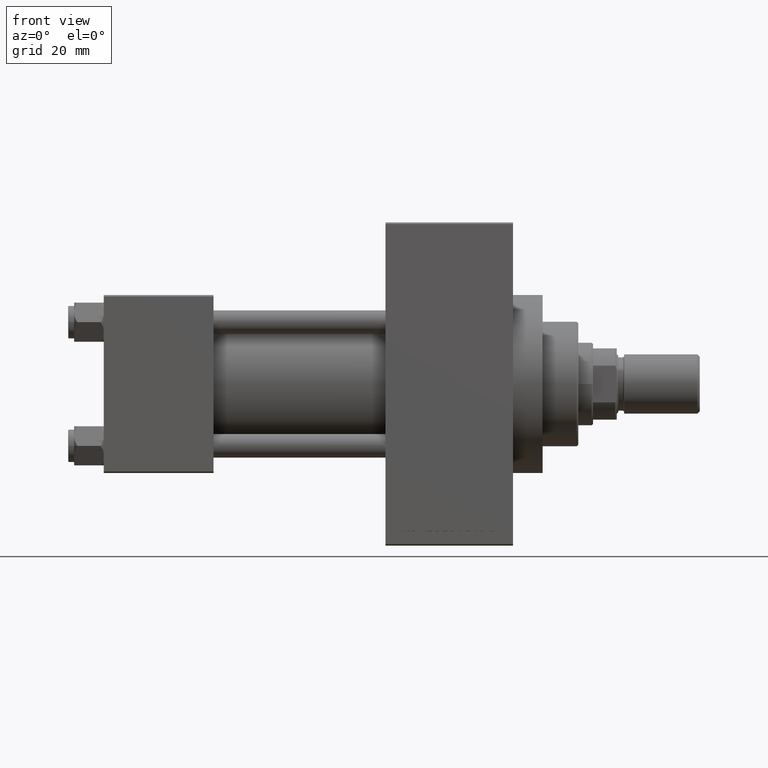
[diagram: clean part render]
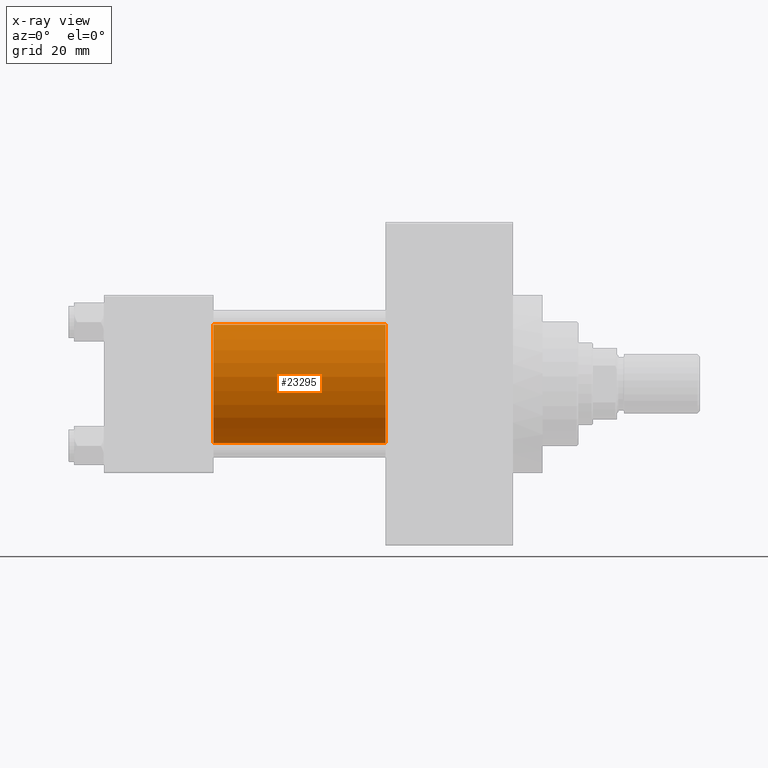
[diagram: x-ray — body ghosted, one internal face saturated and labeled with its STEP entity id]
A machine part, front view, then the same camera in x-ray: the body is ghosted and one INTERNAL B-rep face — a face not visible from any outside direction — is saturated and labeled: STEP entity #23295.
In plain terms, the highlighted cylindrical surface (partial cylindrical patch) has radius 20 mm, axis along (-1, -0, -0).
Its self-contained STEP definition (entity closure, byte-faithful):
#78 = CARTESIAN_POINT ( 'NONE',  ( 95.00000000000000000, -2.602085213965210642E-15, 20.00000000000000000 ) ) ;
#2250 = LINE ( 'NONE', #5635, #12623 ) ;
#4244 = DIRECTION ( 'NONE',  ( 0.000000000000000000, 0.000000000000000000, -1.000000000000000000 ) ) ;
#5635 = CARTESIAN_POINT ( 'NONE',  ( 95.00000000000000000, -2.602085213965210642E-15, 20.00000000000000000 ) ) ;
#5694 = CARTESIAN_POINT ( 'NONE',  ( 37.00000000000000000, -2.602085213965210642E-15, 0.000000000000000000 ) ) ;
#7670 = ORIENTED_EDGE ( 'NONE', *, *, #17420, .F. ) ;
#8691 = DIRECTION ( 'NONE',  ( -1.000000000000000000, -0.000000000000000000, -0.000000000000000000 ) ) ;
#8924 = ORIENTED_EDGE ( 'NONE', *, *, #34322, .T. ) ;
#11119 = DIRECTION ( 'NONE',  ( 0.000000000000000000, 0.000000000000000000, 1.000000000000000000 ) ) ;
#12623 = VECTOR ( 'NONE', #46650, 1000.000000000000000 ) ;
#12898 = CIRCLE ( 'NONE', #36810, 20.00000000000000000 ) ;
#13136 = ORIENTED_EDGE ( 'NONE', *, *, #22215, .F. ) ;
#15924 = VECTOR ( 'NONE', #8691, 1000.000000000000000 ) ;
#17420 = EDGE_CURVE ( 'NONE', #44711, #37010, #18662, .T. ) ;
#18662 = CIRCLE ( 'NONE', #34093, 20.00000000000000000 ) ;
#22215 = EDGE_CURVE ( 'NONE', #40984, #44711, #2250, .T. ) ;
#23295 = ADVANCED_FACE ( 'NONE', ( #29459 ), #36692, .F. ) ;
#23552 = VERTEX_POINT ( 'NONE', #28434 ) ;
#26957 = ORIENTED_EDGE ( 'NONE', *, *, #28723, .T. ) ;
#27265 = CARTESIAN_POINT ( 'NONE',  ( 95.00000000000000000, -1.527916156705046464E-16, -20.00000000000000000 ) ) ;
#28434 = CARTESIAN_POINT ( 'NONE',  ( 95.00000000000000000, -1.527916156705046464E-16, -20.00000000000000000 ) ) ;
#28723 = EDGE_CURVE ( 'NONE', #23552, #37010, #30878, .T. ) ;
#28745 = DIRECTION ( 'NONE',  ( -1.000000000000000000, -0.000000000000000000, -0.000000000000000000 ) ) ;
#29459 = FACE_OUTER_BOUND ( 'NONE', #36566, .T. ) ;
#30334 = DIRECTION ( 'NONE',  ( 0.000000000000000000, 0.000000000000000000, -1.000000000000000000 ) ) ;
#30560 = DIRECTION ( 'NONE',  ( 1.000000000000000000, 0.000000000000000000, 0.000000000000000000 ) ) ;
#30878 = LINE ( 'NONE', #27265, #15924 ) ;
#32752 = CARTESIAN_POINT ( 'NONE',  ( 37.00000000000000000, -1.527916156705046464E-16, -20.00000000000000000 ) ) ;
#34093 = AXIS2_PLACEMENT_3D ( 'NONE', #5694, #30560, #30334 ) ;
#34322 = EDGE_CURVE ( 'NONE', #40984, #23552, #12898, .T. ) ;
#34370 = DIRECTION ( 'NONE',  ( 1.000000000000000000, 0.000000000000000000, 0.000000000000000000 ) ) ;
#36566 = EDGE_LOOP ( 'NONE', ( #8924, #26957, #7670, #13136 ) ) ;
#36692 = CYLINDRICAL_SURFACE ( 'NONE', #45811, 20.00000000000000000 ) ;
#36810 = AXIS2_PLACEMENT_3D ( 'NONE', #37304, #34370, #4244 ) ;
#37010 = VERTEX_POINT ( 'NONE', #32752 ) ;
#37125 = CARTESIAN_POINT ( 'NONE',  ( 37.00000000000000000, -2.602085213965210642E-15, 20.00000000000000000 ) ) ;
#37304 = CARTESIAN_POINT ( 'NONE',  ( 95.00000000000000000, -2.602085213965210642E-15, 0.000000000000000000 ) ) ;
#40984 = VERTEX_POINT ( 'NONE', #78 ) ;
#44173 = CARTESIAN_POINT ( 'NONE',  ( 95.00000000000000000, -2.602085213965210642E-15, 0.000000000000000000 ) ) ;
#44711 = VERTEX_POINT ( 'NONE', #37125 ) ;
#45811 = AXIS2_PLACEMENT_3D ( 'NONE', #44173, #28745, #11119 ) ;
#46650 = DIRECTION ( 'NONE',  ( -1.000000000000000000, -0.000000000000000000, -0.000000000000000000 ) ) ;